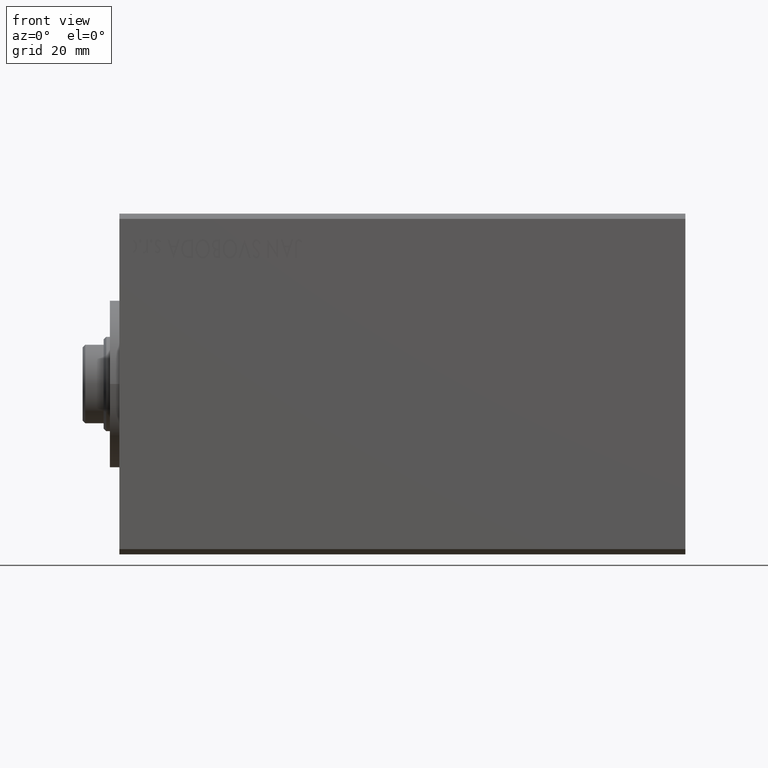
[diagram: clean part render]
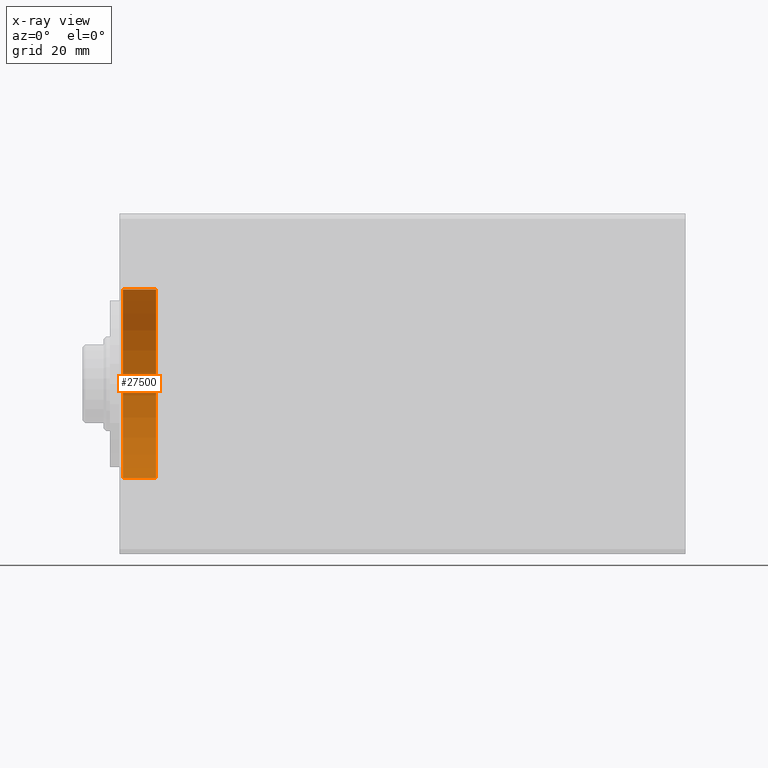
[diagram: x-ray — body ghosted, one internal face saturated and labeled with its STEP entity id]
A machine part, front view, then the same camera in x-ray: the body is ghosted and one INTERNAL B-rep face — a face not visible from any outside direction — is saturated and labeled: STEP entity #27500.
In plain terms, the highlighted cylindrical surface (partial cylindrical patch) has radius 18 mm, axis along (-1, -0, -0).
Its self-contained STEP definition (entity closure, byte-faithful):
#2649 = DIRECTION ( 'NONE',  ( -1.000000000000000000, -0.000000000000000000, -0.000000000000000000 ) ) ;
#3303 = LINE ( 'NONE', #6863, #28526 ) ;
#4228 = EDGE_CURVE ( 'NONE', #12618, #25699, #3303, .T. ) ;
#4803 = DIRECTION ( 'NONE',  ( 0.000000000000000000, 0.000000000000000000, -1.000000000000000000 ) ) ;
#6863 = CARTESIAN_POINT ( 'NONE',  ( 7.000000000000000000, 0.000000000000000000, 18.00000000000000000 ) ) ;
#8266 = ORIENTED_EDGE ( 'NONE', *, *, #4228, .T. ) ;
#8586 = CARTESIAN_POINT ( 'NONE',  ( 7.000000000000000000, 0.000000000000000000, 0.000000000000000000 ) ) ;
#9899 = CARTESIAN_POINT ( 'NONE',  ( 0.6999999999999749756, 0.000000000000000000, 18.00000000000000000 ) ) ;
#10410 = AXIS2_PLACEMENT_3D ( 'NONE', #28862, #35560, #18794 ) ;
#10413 = AXIS2_PLACEMENT_3D ( 'NONE', #11286, #31413, #4803 ) ;
#11272 = CYLINDRICAL_SURFACE ( 'NONE', #18234, 18.00000000000000000 ) ;
#11286 = CARTESIAN_POINT ( 'NONE',  ( 0.6999999999999749756, 0.000000000000000000, 0.000000000000000000 ) ) ;
#12019 = LINE ( 'NONE', #25648, #27392 ) ;
#12332 = ORIENTED_EDGE ( 'NONE', *, *, #14107, .T. ) ;
#12618 = VERTEX_POINT ( 'NONE', #39201 ) ;
#14107 = EDGE_CURVE ( 'NONE', #25699, #35653, #30398, .T. ) ;
#18234 = AXIS2_PLACEMENT_3D ( 'NONE', #8586, #32060, #28709 ) ;
#18261 = EDGE_CURVE ( 'NONE', #12618, #35639, #33272, .T. ) ;
#18412 = FACE_OUTER_BOUND ( 'NONE', #28420, .T. ) ;
#18794 = DIRECTION ( 'NONE',  ( 0.000000000000000000, 0.000000000000000000, 1.000000000000000000 ) ) ;
#22300 = DIRECTION ( 'NONE',  ( -1.000000000000000000, -0.000000000000000000, -0.000000000000000000 ) ) ;
#25648 = CARTESIAN_POINT ( 'NONE',  ( 7.000000000000000000, 2.204364238465235428E-15, -18.00000000000000000 ) ) ;
#25699 = VERTEX_POINT ( 'NONE', #9899 ) ;
#27392 = VECTOR ( 'NONE', #22300, 1000.000000000000000 ) ;
#27500 = ADVANCED_FACE ( 'NONE', ( #18412 ), #11272, .F. ) ;
#28420 = EDGE_LOOP ( 'NONE', ( #28824, #31309, #8266, #12332 ) ) ;
#28526 = VECTOR ( 'NONE', #2649, 1000.000000000000000 ) ;
#28709 = DIRECTION ( 'NONE',  ( 0.000000000000000000, 0.000000000000000000, 1.000000000000000000 ) ) ;
#28824 = ORIENTED_EDGE ( 'NONE', *, *, #30087, .F. ) ;
#28862 = CARTESIAN_POINT ( 'NONE',  ( 7.000000000000000000, 0.000000000000000000, 0.000000000000000000 ) ) ;
#30087 = EDGE_CURVE ( 'NONE', #35639, #35653, #12019, .T. ) ;
#30398 = CIRCLE ( 'NONE', #10413, 18.00000000000000000 ) ;
#30666 = CARTESIAN_POINT ( 'NONE',  ( 7.000000000000000000, 2.204364238465235428E-15, -18.00000000000000000 ) ) ;
#31309 = ORIENTED_EDGE ( 'NONE', *, *, #18261, .F. ) ;
#31413 = DIRECTION ( 'NONE',  ( -1.000000000000000000, 0.000000000000000000, 0.000000000000000000 ) ) ;
#32060 = DIRECTION ( 'NONE',  ( -1.000000000000000000, -0.000000000000000000, -0.000000000000000000 ) ) ;
#33272 = CIRCLE ( 'NONE', #10410, 18.00000000000000000 ) ;
#35560 = DIRECTION ( 'NONE',  ( -1.000000000000000000, 0.000000000000000000, 0.000000000000000000 ) ) ;
#35639 = VERTEX_POINT ( 'NONE', #30666 ) ;
#35653 = VERTEX_POINT ( 'NONE', #40269 ) ;
#39201 = CARTESIAN_POINT ( 'NONE',  ( 7.000000000000000000, 0.000000000000000000, 18.00000000000000000 ) ) ;
#40269 = CARTESIAN_POINT ( 'NONE',  ( 0.6999999999999749756, 2.204364238465235428E-15, -18.00000000000000000 ) ) ;